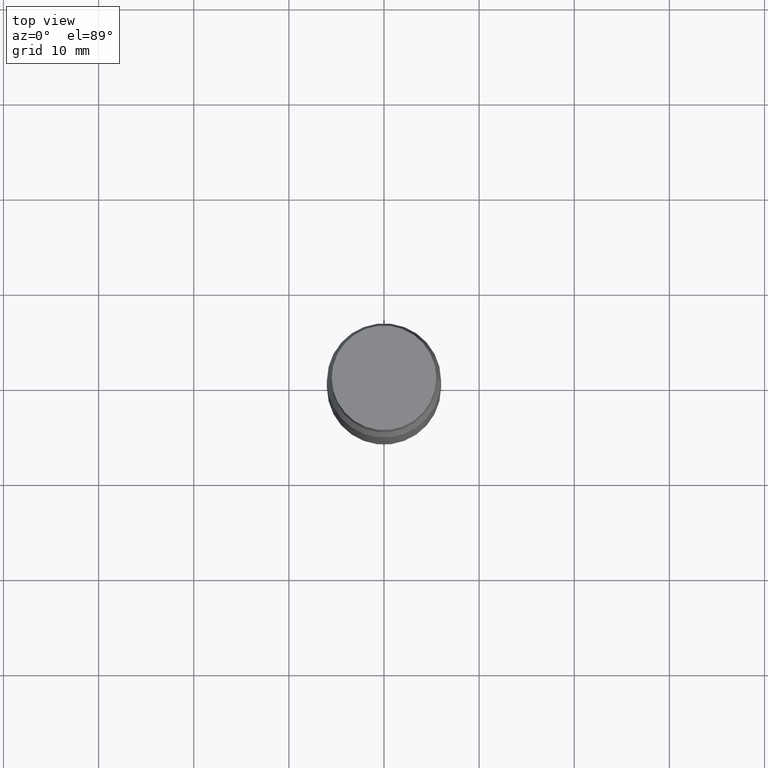
[diagram: clean part render]
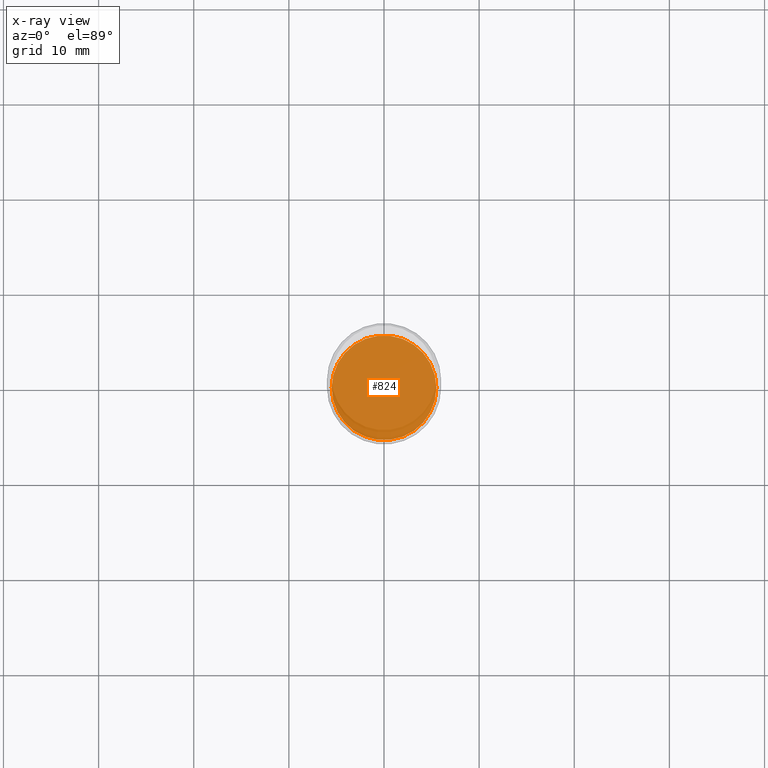
[diagram: x-ray — body ghosted, one internal face saturated and labeled with its STEP entity id]
A machine part, top view, then the same camera in x-ray: the body is ghosted and one INTERNAL B-rep face — a face not visible from any outside direction — is saturated and labeled: STEP entity #824.
In plain terms, the highlighted planar face has unit normal (0, -0, -1).
Its self-contained STEP definition (entity closure, byte-faithful):
#20 = ORIENTED_EDGE ( 'NONE', *, *, #658, .T. ) ;
#25 = PLANE ( 'NONE',  #134 ) ;
#65 = CARTESIAN_POINT ( 'NONE',  ( -0.2165500000000000758, -7.808713546062369221E-15, -2.401599999999999735 ) ) ;
#88 = DIRECTION ( 'NONE',  ( -2.445468806185136597E-29, 3.491481338843145583E-15, 1.000000000000000000 ) ) ;
#126 = ORIENTED_EDGE ( 'NONE', *, *, #575, .T. ) ;
#128 = EDGE_LOOP ( 'NONE', ( #126, #20 ) ) ;
#134 = AXIS2_PLACEMENT_3D ( 'NONE', #261, #935, #353 ) ;
#175 = DIRECTION ( 'NONE',  ( 1.000000000000000000, -6.982962677686266711E-15, 0.000000000000000000 ) ) ;
#196 = AXIS2_PLACEMENT_3D ( 'NONE', #595, #88, #538 ) ;
#242 = CARTESIAN_POINT ( 'NONE',  ( 0.2165500000000000758, -9.897302151218658086E-15, -2.401599999999999735 ) ) ;
#261 = CARTESIAN_POINT ( 'NONE',  ( 1.512160567853020184E-15, 0.2165499999999916658, -2.401600000000000623 ) ) ;
#342 = DIRECTION ( 'NONE',  ( -2.445468806185136597E-29, 3.491481338843145583E-15, 1.000000000000000000 ) ) ;
#353 = DIRECTION ( 'NONE',  ( -1.000000000000000000, 6.982962677686265922E-15, -4.876176775795935793E-29 ) ) ;
#538 = DIRECTION ( 'NONE',  ( 1.000000000000000000, -6.982962677686266711E-15, 0.000000000000000000 ) ) ;
#557 = VERTEX_POINT ( 'NONE', #242 ) ;
#575 = EDGE_CURVE ( 'NONE', #557, #854, #786, .T. ) ;
#595 = CARTESIAN_POINT ( 'NONE',  ( 5.873037884934223228E-29, -8.385141583365697263E-15, -2.401599999999999735 ) ) ;
#648 = CIRCLE ( 'NONE', #196, 0.2165500000000000758 ) ;
#658 = EDGE_CURVE ( 'NONE', #854, #557, #648, .T. ) ;
#688 = FACE_OUTER_BOUND ( 'NONE', #128, .T. ) ;
#718 = AXIS2_PLACEMENT_3D ( 'NONE', #861, #342, #175 ) ;
#786 = CIRCLE ( 'NONE', #718, 0.2165500000000000758 ) ;
#824 = ADVANCED_FACE ( 'NONE', ( #688 ), #25, .F. ) ;
#854 = VERTEX_POINT ( 'NONE', #65 ) ;
#861 = CARTESIAN_POINT ( 'NONE',  ( 5.873037884934223228E-29, -8.385141583365697263E-15, -2.401599999999999735 ) ) ;
#935 = DIRECTION ( 'NONE',  ( 2.438088387897960049E-29, -3.491481338843145188E-15, -1.000000000000000000 ) ) ;